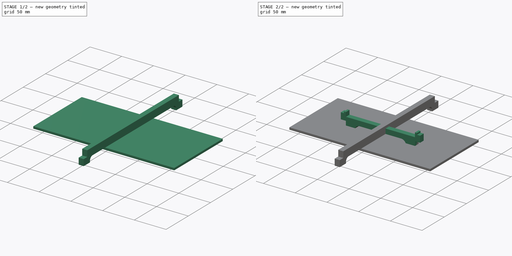
[diagram: build sequence overview — one tinted view per stage of 2, left to right]
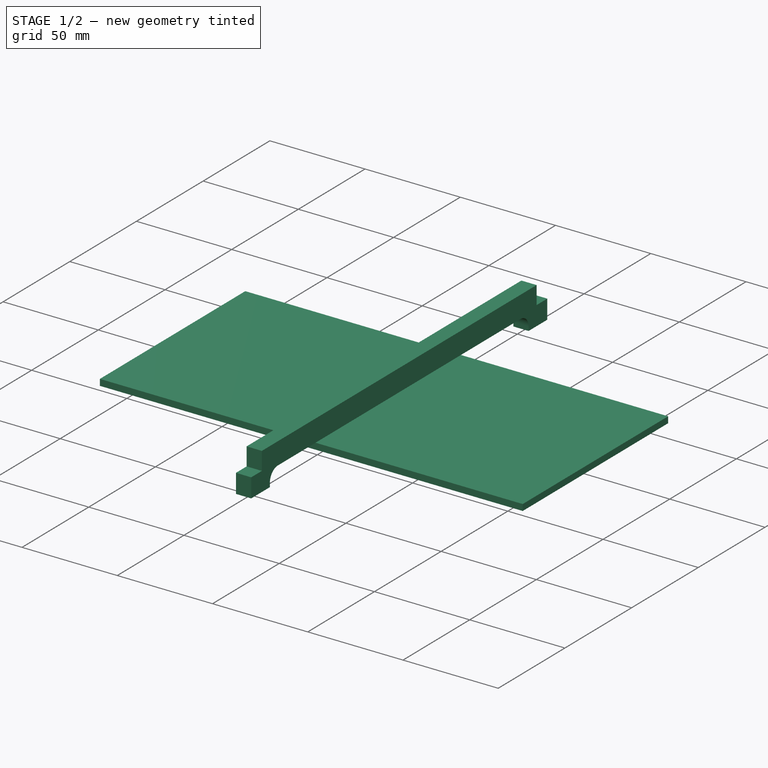
[diagram: stage 1 of 2 — iso view after this stage's code; geometry added in this stage tinted green]
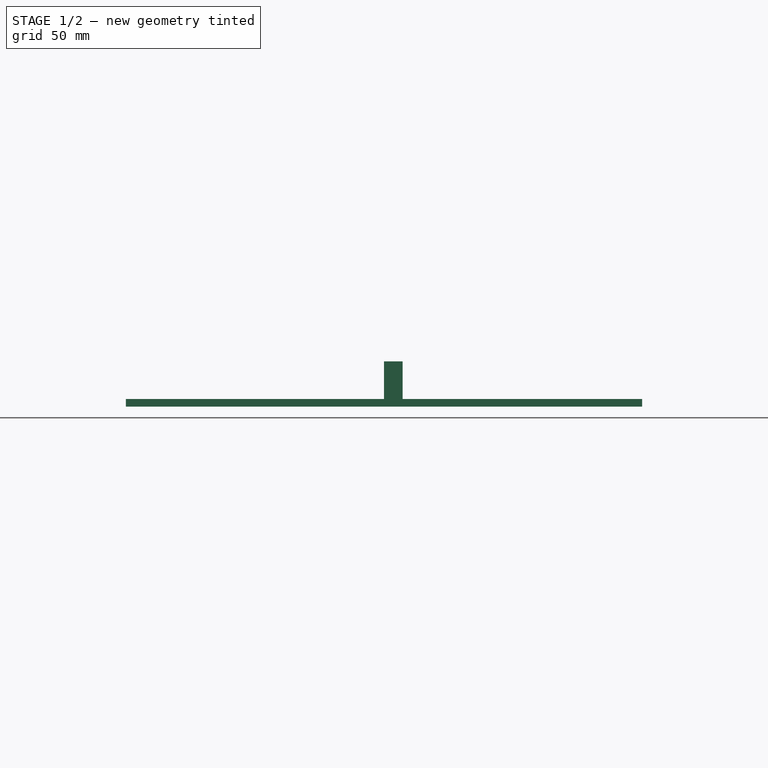
[diagram: stage 1 of 2 — front view after this stage's code; geometry added in this stage tinted green]
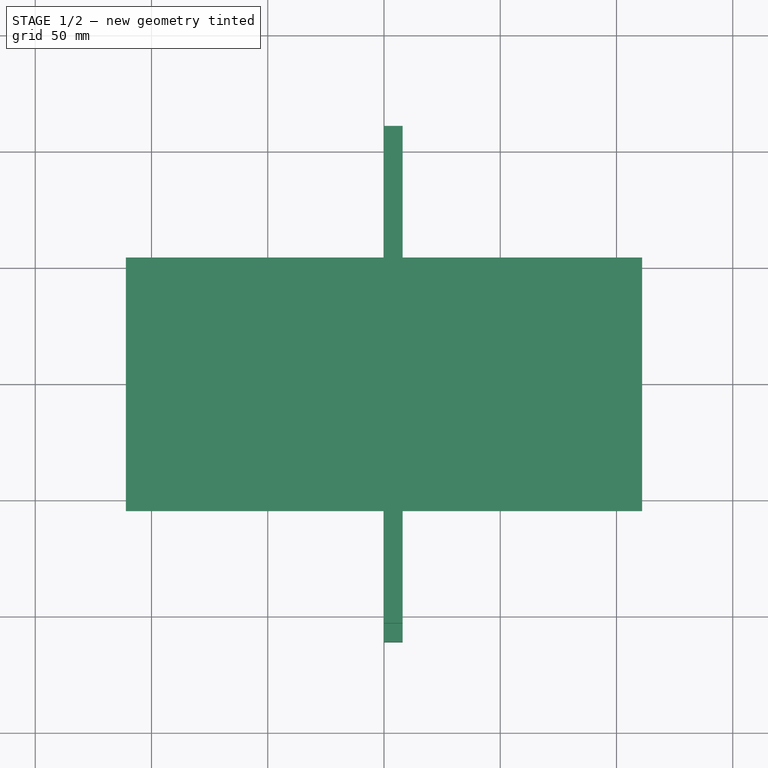
[diagram: stage 1 of 2 — top view after this stage's code; geometry added in this stage tinted green]
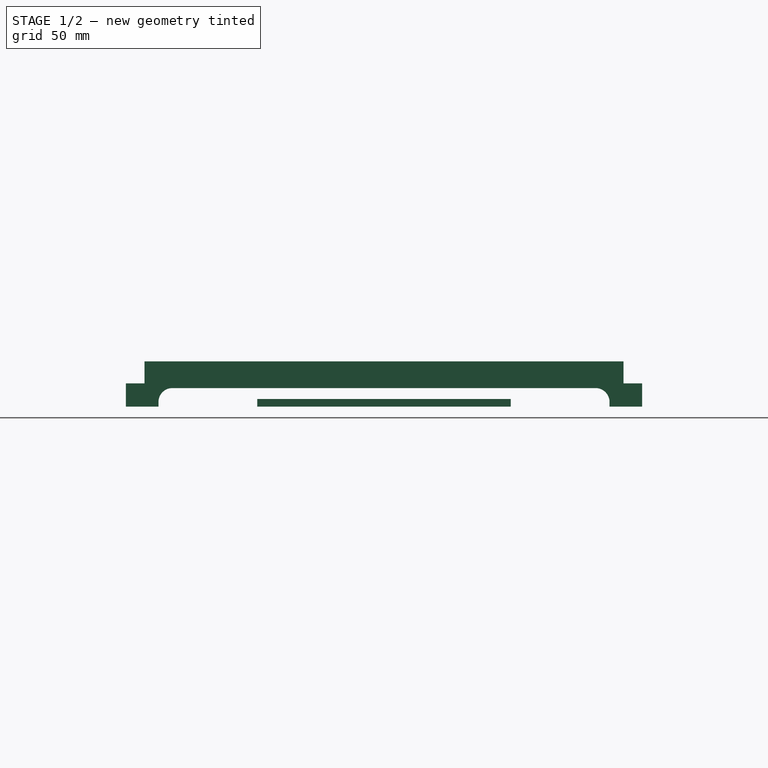
[diagram: stage 1 of 2 — right view after this stage's code; geometry added in this stage tinted green]
FCSTD DOCUMENT  (FreeCAD 0.19R24291 (Git))
Label: ri_light-supports
License: All rights reserved
LicenseURL: http://en.wikipedia.org/wiki/All_rights_reserved
objects: Sketcher::SketchObject×7, App::Part×5, TechDraw::DrawViewPart×4, PartDesign::Body×4, PartDesign::Pad×3, TechDraw::DrawSVGTemplate×2, TechDraw::DrawPage×2, Part::Part2DObjectPython×2
note: 19 computed .brp shape members not serialized (recipe doc carries the construction recipe); baked Part::Feature solids carry a one-line shape summary decoded from their .brp

FEATURE [Sketcher::SketchObject] Sketch
  FullyConstrained = true
  MapMode = 5
  Placement = pos=(0,0,0) rot=(0.57735,0.57735,0.57735;2.0944rad)
  Support = -> [YZ_Plane015]
  sketch-geometry (14):
    g0: LineSegment StartX=-111 StartY=0 StartZ=0 EndX=-111 EndY=10 EndZ=0
    g1: LineSegment StartX=-111 StartY=10 StartZ=0 EndX=-103 EndY=10 EndZ=0
    g2: LineSegment StartX=-103 StartY=10 StartZ=0 EndX=-103 EndY=19.5 EndZ=0
    g3: LineSegment StartX=-103 StartY=19.5 StartZ=0 EndX=103 EndY=19.5 EndZ=0
    g4: LineSegment StartX=103 StartY=19.5 StartZ=0 EndX=103 EndY=10 EndZ=0
    g5: LineSegment StartX=103 StartY=10 StartZ=0 EndX=111 EndY=10 EndZ=0
    g6: LineSegment StartX=111 StartY=10 StartZ=0 EndX=111 EndY=0 EndZ=0
    g7: LineSegment StartX=111 StartY=0 StartZ=0 EndX=97 EndY=0 EndZ=0
    g8: LineSegment StartX=97 StartY=0 StartZ=0 EndX=97 EndY=2 EndZ=0
    g9: LineSegment StartX=91 StartY=8 StartZ=0 EndX=-91 EndY=8 EndZ=0
    g10: LineSegment StartX=-97 StartY=2 StartZ=0 EndX=-97 EndY=0 EndZ=0
    g11: LineSegment StartX=-97 StartY=0 StartZ=0 EndX=-111 EndY=0 EndZ=0
    g12: ArcOfCircle CenterX=-91 CenterY=2 CenterZ=0 NormalX=0 NormalY=0 NormalZ=1 AngleXU=0 Radius=6 StartAngle=1.57079 EndAngle=3.14159
    g13: ArcOfCircle CenterX=91 CenterY=2 CenterZ=0 NormalX=0 NormalY=0 NormalZ=1 AngleXU=0 Radius=6 StartAngle=5.87662e-08 EndAngle=1.5708
  constraints (43):
    c: PointOnObject(g0,g-1)
    c: Vertical(g0)
    c: Coincident(g0,g1)
    c: Horizontal(g1)
    c: Coincident(g1,g2)
    c: Vertical(g2)
    c: Coincident(g2,g3)
    c: Horizontal(g3)
    c: Coincident(g3,g4)
    c: Vertical(g4)
    c: Coincident(g4,g5)
    c: Horizontal(g5)
    c: Coincident(g5,g6)
    c: Vertical(g6)
    c: Coincident(g6,g7)
    c: PointOnObject(g7,g-1)
    c: Coincident(g7,g8)
    c: Vertical(g8)
    c: Horizontal(g9)
    c: PointOnObject(g10,g-1)
    c: Vertical(g10)
    c: Coincident(g10,g11)
    c: Coincident(g11,g0)
    c: Coincident(g9,g13)
    c: Coincident(g8,g13)
    c: Coincident(g12,g9)
    c: Tangent(g12,g9)
    c: Coincident(g10,g12)
    c: Tangent(g12,g10)
    c: Tangent(g13,g9)
    c: Tangent(g13,g8)
    c: Equal(g1,g5)
    c: Equal(g11,g7)
    c: Equal(g0,g6)
    c: Symmetric(g0,g6,g-1)
    c: DistanceY(g0,g2) = 19.5
    c: DistanceY(g0,g0) = 10
    c: DistanceX(g1,g1) = 8
    c: DistanceX(g11,g11) = 14
    c: DistanceY(g10,g9) = 8
    c: Equal(g12,g13)
    c: DistanceX(g0,g6) = 222
    c: Radius(g12) = 6
FEATURE [Sketcher::SketchObject] Sketch001
  FullyConstrained = true
  MapMode = 5
  Placement = pos=(0,0,0) rot=(1,0,0;1.5708rad)
  Support = -> [XZ_Plane016]
  sketch-geometry (20):
    g0: LineSegment StartX=-54.5 StartY=0 StartZ=0 EndX=-54.5 EndY=10 EndZ=0
    g1: LineSegment StartX=-54.5 StartY=10 StartZ=0 EndX=-62.5 EndY=10 EndZ=0
    g2: LineSegment StartX=-62.5 StartY=10 StartZ=0 EndX=-62.5 EndY=20 EndZ=0
    g3: LineSegment StartX=62.5 StartY=20 StartZ=0 EndX=62.5 EndY=10 EndZ=0
    g4: LineSegment StartX=62.5 StartY=10 StartZ=0 EndX=54.5 EndY=10 EndZ=0
    g5: LineSegment StartX=54.5 StartY=10 StartZ=0 EndX=54.5 EndY=0 EndZ=0
    g6: LineSegment StartX=54.5 StartY=0 StartZ=0 EndX=40.5 EndY=0 EndZ=0
    g7: LineSegment StartX=-54.5 StartY=0 StartZ=0 EndX=-40.5 EndY=1e-15 EndZ=0
    g8: ArcOfCircle CenterX=-32.5 CenterY=0 CenterZ=0 NormalX=0 NormalY=0 NormalZ=1 AngleXU=0 Radius=8 StartAngle=1.5708 EndAngle=3.14159
    g9: ArcOfCircle CenterX=32.5 CenterY=0 CenterZ=0 NormalX=0 NormalY=0 NormalZ=1 AngleXU=0 Radius=8 StartAngle=0 EndAngle=1.5708
    g10: LineSegment StartX=-32.5 StartY=8 StartZ=0 EndX=32.5 EndY=8 EndZ=0
    g11: LineSegment StartX=-54.35 StartY=15.7 StartZ=0 EndX=54.35 EndY=15.7 EndZ=0
    g12: LineSegment StartX=-62.5 StartY=20 StartZ=0 EndX=-57.5 EndY=20 EndZ=0
    g13: LineSegment StartX=-57.5 StartY=20 StartZ=0 EndX=-57.5 EndY=22.5 EndZ=0
    g14: LineSegment StartX=-57.5 StartY=22.5 StartZ=0 EndX=-54.35 EndY=22.5 EndZ=0
    g15: LineSegment StartX=-54.35 StartY=22.5 StartZ=0 EndX=-54.35 EndY=15.7 EndZ=0
    g16: LineSegment StartX=54.35 StartY=15.7 StartZ=0 EndX=54.35 EndY=22.5 EndZ=0
    g17: LineSegment StartX=54.35 StartY=22.5 StartZ=0 EndX=57.5 EndY=22.5 EndZ=0
    g18: LineSegment StartX=57.5 StartY=22.5 StartZ=0 EndX=57.5 EndY=20 EndZ=0
    g19: LineSegment StartX=57.5 StartY=20 StartZ=0 EndX=62.5 EndY=20 EndZ=0
  constraints (60):
    c: Vertical(g0)
    c: Coincident(g0,g1)
    c: Coincident(g1,g2)
    c: Vertical(g2)
    c: Vertical(g3)
    c: Coincident(g3,g4)
    c: Horizontal(g4)
    c: Coincident(g4,g5)
    c: Vertical(g5)
    c: Coincident(g5,g6)
    c: Coincident(g7,g0)
    c: Equal(g1,g4)
    c: Equal(g7,g6)
    c: DistanceY(g0,g2) = 20
    c: DistanceX(g1,g1) = 8
    c: DistanceX(g2,g3) = 125
    c: DistanceX(g7,g7) = 14
    c: Tangent(g6,g7)
    c: Tangent(g1,g4)
    c: DistanceY(g0,g1) = 10
    c: Tangent(g-1,g7)
    c: Tangent(g6,g-1)
    c: PointOnObject(g8,g-1)
    c: Coincident(g8,g7)
    c: PointOnObject(g9,g-1)
    c: Coincident(g9,g6)
    c: Equal(g8,g9)
    c: Coincident(g10,g8)
    c: Coincident(g10,g9)
    c: Angle(g9) = 1.5708
    c: Angle(g8) = 1.5708
    c: Radius(g8) = 8
    c: Horizontal(g11)
    c: Coincident(g2,g12)
    c: Horizontal(g12)
    c: Coincident(g12,g13)
    c: Vertical(g13)
    c: Coincident(g13,g14)
    c: Horizontal(g14)
    c: Coincident(g15,g14)
    c: Coincident(g15,g11)
    c: Vertical(g15)
    c: Coincident(g11,g16)
    c: Vertical(g16)
    c: Coincident(g16,g17)
    c: Horizontal(g17)
    c: Coincident(g17,g18)
    c: Vertical(g18)
    c: Coincident(g18,g19)
    c: Coincident(g19,g3)
    c: Horizontal(g19)
    c: DistanceX(g12,g12) = 5
    c: DistanceY(g13,g13) = 2.5
    c: DistanceX(g11,g11) = 108.7
    c: Equal(g19,g12)
    c: DistanceY(g15,g15) = 6.8
    c: Symmetric(g0,g5,g-1)
    c: Equal(g17,g14)
    c: Equal(g13,g18)
    c: Equal(g15,g16)
FEATURE [TechDraw::DrawSVGTemplate] Template
  Height = 297
  Orientation = 1
  Width = 420
FEATURE [TechDraw::DrawViewPart] View
  CoarseView = false
  Direction = (1,0,0)
  Focus = 100
  HardHidden = false
  IsoCount = 0
  IsoHidden = false
  IsoVisible = false
  LockPosition = false
  Perspective = false
  Rotation = 0
  ScaleType = 0
  SeamHidden = false
  SeamVisible = true
  SmoothHidden = false
  SmoothVisible = true
  X = 91.6528
  XDirection = (0.866,0.5,0)
  Y = 262.974
FEATURE [TechDraw::DrawViewPart] View001
  CoarseView = false
  Direction = (0,-1,0)
  Focus = 100
  HardHidden = false
  IsoCount = 0
  IsoHidden = false
  IsoVisible = false
  LockPosition = false
  Perspective = false
  Rotation = 0
  ScaleType = 0
  SeamHidden = false
  SeamVisible = true
  SmoothHidden = false
  SmoothVisible = true
  X = 139.852
  XDirection = (0.866,0.5,0)
  Y = 222.521
FEATURE [TechDraw::DrawPage] Page  label="Supports"
  KeepUpdated = true
  NextBalloonIndex = 1
  ProjectionType = 0
  Template = -> Template
  Views = -> [View,View001]
FEATURE [Sketcher::SketchObject] Sketch003
  FullyConstrained = true
  MapMode = 5
  Support = -> [XY_Plane017]
  sketch-geometry (4):
    g0: LineSegment StartX=-110.5 StartY=57 StartZ=0 EndX=110.5 EndY=57 EndZ=0
    g1: LineSegment StartX=110.5 StartY=57 StartZ=0 EndX=110.5 EndY=-57 EndZ=0
    g2: LineSegment StartX=110.5 StartY=-57 StartZ=0 EndX=-110.5 EndY=-57 EndZ=0
    g3: LineSegment StartX=-110.5 StartY=-57 StartZ=0 EndX=-110.5 EndY=57 EndZ=0
  constraints (11):
    c: Coincident(g0,g1)
    c: Coincident(g1,g2)
    c: Coincident(g2,g3)
    c: Coincident(g3,g0)
    c: Horizontal(g0)
    c: Horizontal(g2)
    c: Vertical(g1)
    c: Vertical(g3)
    c: DistanceX(g0,g0) = 221
    c: Symmetric(g0,g1,g-1)
    c: DistanceY(g1,g1) = 114
FEATURE [Sketcher::SketchObject] Sketch004
  FullyConstrained = true
  MapMode = 5
  Support = -> [XY_Plane018]
  sketch-geometry (4):
    g0: LineSegment StartX=-111 StartY=54.5 StartZ=0 EndX=111 EndY=54.5 EndZ=0
    g1: LineSegment StartX=111 StartY=54.5 StartZ=0 EndX=111 EndY=-54.5 EndZ=0
    g2: LineSegment StartX=111 StartY=-54.5 StartZ=0 EndX=-111 EndY=-54.5 EndZ=0
    g3: LineSegment StartX=-111 StartY=-54.5 StartZ=0 EndX=-111 EndY=54.5 EndZ=0
  constraints (11):
    c: Coincident(g0,g1)
    c: Coincident(g1,g2)
    c: Coincident(g2,g3)
    c: Coincident(g3,g0)
    c: Horizontal(g0)
    c: Horizontal(g2)
    c: Vertical(g1)
    c: Vertical(g3)
    c: DistanceX(g0,g0) = 222
    c: DistanceY(g1,g1) = 109
    c: Symmetric(g0,g2,g-1)
FEATURE [Sketcher::SketchObject] Sketch005
  FullyConstrained = true
  MapMode = 5
  Support = -> [XY_Plane010]
  sketch-geometry (4):
    g0: LineSegment StartX=-240 StartY=195 StartZ=0 EndX=-200 EndY=195 EndZ=0
    g1: LineSegment StartX=-200 StartY=195 StartZ=0 EndX=-200 EndY=-200 EndZ=0
    g2: LineSegment StartX=-200 StartY=-200 StartZ=0 EndX=-240 EndY=-200 EndZ=0
    g3: LineSegment StartX=-240 StartY=-200 StartZ=0 EndX=-240 EndY=195 EndZ=0
  constraints (12):
    c: Coincident(g0,g1)
    c: Coincident(g1,g2)
    c: Coincident(g2,g3)
    c: Coincident(g3,g0)
    c: Horizontal(g0)
    c: Horizontal(g2)
    c: Vertical(g1)
    c: Vertical(g3)
    c: DistanceY(g3,g3) = 395
    c: DistanceX(g0,g0) = 40
    c: DistanceX(g1,g-1) = 200
    c: DistanceY(g1,g-1) = 200
FEATURE [App::Part] Part005  label="Camera Arm"
  Group = -> [Sketch005]
  Origin = -> Origin010
FEATURE [TechDraw::DrawSVGTemplate] Template003
  Height = 420
  Orientation = 1
  Width = 594
FEATURE [TechDraw::DrawViewPart] View005
  CoarseView = false
  Direction = (0,0,1)
  Focus = 100
  HardHidden = false
  IsoCount = 0
  IsoHidden = false
  IsoVisible = false
  LockPosition = false
  Perspective = false
  Rotation = 0
  ScaleType = 0
  SeamHidden = false
  SeamVisible = true
  SmoothHidden = false
  SmoothVisible = true
  X = 297
  XDirection = (1,0,0)
  Y = 210
FEATURE [TechDraw::DrawViewPart] View006
  CoarseView = false
  Direction = (0,0,1)
  Focus = 100
  HardHidden = false
  IsoCount = 0
  IsoHidden = false
  IsoVisible = false
  LockPosition = false
  Perspective = false
  Rotation = 0
  ScaleType = 0
  SeamHidden = false
  SeamVisible = true
  SmoothHidden = false
  SmoothVisible = true
  X = 139.417
  XDirection = (1,0,0)
  Y = 208.618
FEATURE [TechDraw::DrawPage] Page003
  KeepUpdated = true
  NextBalloonIndex = 1
  ProjectionType = 0
  Template = -> Template003
  Views = -> [View005,View006]
FEATURE [PartDesign::Pad] Pad
  Direction = (1,1,1)
  Length = 8
  Length2 = 100
  Placement = pos=(0,0,0) rot=(0.57735,0.57735,0.57735;2.0944rad)
  Profile = -> Sketch
  Refine = true
  Type = 0
FEATURE [PartDesign::Body] Body004
  Group = -> [Sketch001,Pad001]
  Origin = -> Origin016
  Tip = -> Pad001
FEATURE [App::Part] Part001  label="horizontal"
  Group = -> [Body004]
  Origin = -> Origin002
FEATURE [PartDesign::Body] Body005  label="sidelight"
  Group = -> [Sketch003]
  Origin = -> Origin017
FEATURE [App::Part] Part003  label="sidelight new"
  Group = -> [Body005]
  Origin = -> Origin006
FEATURE [PartDesign::Pad] Pad002
  Direction = (1,1,1)
  Length = 3.3
  Length2 = 100
  Profile = -> Sketch004
  Refine = true
  Type = 0
FEATURE [PartDesign::Body] Body
  Group = -> [Sketch004,Pad002]
  Origin = -> Origin018
  Tip = -> Pad002
FEATURE [App::Part] Part004  label="backlight"
  Group = -> [Body]
  Origin = -> Origin008
FEATURE [Part::Part2DObjectPython] Shape2DView  label="Shape2DViewVERT"  # Draft 2D object (typed FeaturePython)
  Base = -> Body003
  FuseArch = false
  HiddenLines = false
  InPlace = true
  Projection = (1,0,0)
  ProjectionMode = 0
  SegmentLength = 0.05
  Tessellation = false
  VisibleOnly = false
FEATURE [Sketcher::SketchObject] Sketch006  label="SketchVERT"
  FullyConstrained = false
  sketch-geometry (14):
    g0: LineSegment StartX=8.53e-14 StartY=111 StartZ=0 EndX=10 EndY=111 EndZ=0
    g1: LineSegment StartX=10 StartY=111 StartZ=0 EndX=10 EndY=103 EndZ=0
    g2: LineSegment StartX=10 StartY=103 StartZ=0 EndX=19.5 EndY=103 EndZ=0
    g3: LineSegment StartX=19.5 StartY=103 StartZ=0 EndX=19.5 EndY=-103 EndZ=0
    g4: LineSegment StartX=19.5 StartY=-103 StartZ=0 EndX=10 EndY=-103 EndZ=0
    g5: LineSegment StartX=10 StartY=-103 StartZ=0 EndX=10 EndY=-111 EndZ=0
    g6: LineSegment StartX=10 StartY=-111 StartZ=0 EndX=-8.17e-14 EndY=-111 EndZ=0
    g7: LineSegment StartX=-8.88e-14 StartY=-111 StartZ=0 EndX=-7.79e-14 EndY=-97 EndZ=0
    g8: LineSegment StartX=-7.64e-14 StartY=-97 StartZ=0 EndX=2 EndY=-97 EndZ=0
    g9: ArcOfCircle CenterX=2 CenterY=-91 CenterZ=0 NormalX=0 NormalY=0 NormalZ=1 AngleXU=-1.5708 Radius=6 StartAngle=5.87662e-08 EndAngle=1.5708
    g10: LineSegment StartX=8 StartY=-91 StartZ=0 EndX=8 EndY=91 EndZ=0
    g11: ArcOfCircle CenterX=2 CenterY=91 CenterZ=0 NormalX=0 NormalY=0 NormalZ=1 AngleXU=-1.5708 Radius=6 StartAngle=1.57079 EndAngle=3.14159
    g12: LineSegment StartX=2 StartY=97 StartZ=0 EndX=7.59e-14 EndY=97 EndZ=0
    g13: LineSegment StartX=7.37e-14 StartY=97 StartZ=0 EndX=8.46e-14 EndY=111 EndZ=0
FEATURE [Part::Part2DObjectPython] Shape2DView001  label="Shape2DHORZ"  # Draft 2D object (typed FeaturePython)
  Base = -> Sketch001
  FuseArch = false
  HiddenLines = false
  InPlace = true
  Projection = (0,-1,0)
  ProjectionMode = 0
  SegmentLength = 0.05
  Tessellation = false
  VisibleOnly = false
FEATURE [Sketcher::SketchObject] Sketch007  label="SketchHORZ"
  FullyConstrained = false
  sketch-geometry (20):
    g0: ArcOfCircle CenterX=0 CenterY=-32.5 CenterZ=0 NormalX=0 NormalY=0 NormalZ=1 AngleXU=1.5708 Radius=8 StartAngle=1.5708 EndAngle=3.14159
    g1: LineSegment StartX=0 StartY=-54.5 StartZ=0 EndX=-1e-15 EndY=-40.5 EndZ=0
    g2: LineSegment StartX=0 StartY=-54.5 StartZ=0 EndX=-10 EndY=-54.5 EndZ=0
    g3: LineSegment StartX=-10 StartY=-54.5 StartZ=0 EndX=-10 EndY=-62.5 EndZ=0
    g4: LineSegment StartX=-10 StartY=-62.5 StartZ=0 EndX=-20 EndY=-62.5 EndZ=0
    g5: LineSegment StartX=-20 StartY=-62.5 StartZ=0 EndX=-20 EndY=-57.5 EndZ=0
    g6: LineSegment StartX=-20 StartY=-57.5 StartZ=0 EndX=-22.5 EndY=-57.5 EndZ=0
    g7: LineSegment StartX=-22.5 StartY=-57.5 StartZ=0 EndX=-22.5 EndY=-54.35 EndZ=0
    g8: LineSegment StartX=-22.5 StartY=-54.35 StartZ=0 EndX=-15.7 EndY=-54.35 EndZ=0
    g9: LineSegment StartX=-15.7 StartY=-54.35 StartZ=0 EndX=-15.7 EndY=54.35 EndZ=0
    g10: LineSegment StartX=-15.7 StartY=54.35 StartZ=0 EndX=-22.5 EndY=54.35 EndZ=0
    g11: LineSegment StartX=-22.5 StartY=54.35 StartZ=0 EndX=-22.5 EndY=57.5 EndZ=0
    g12: LineSegment StartX=-22.5 StartY=57.5 StartZ=0 EndX=-20 EndY=57.5 EndZ=0
    g13: LineSegment StartX=-20 StartY=57.5 StartZ=0 EndX=-20 EndY=62.5 EndZ=0
    g14: LineSegment StartX=-20 StartY=62.5 StartZ=0 EndX=-10 EndY=62.5 EndZ=0
    g15: LineSegment StartX=-10 StartY=62.5 StartZ=0 EndX=-10 EndY=54.5 EndZ=0
    g16: LineSegment StartX=-10 StartY=54.5 StartZ=0 EndX=0 EndY=54.5 EndZ=0
    g17: LineSegment StartX=0 StartY=54.5 StartZ=0 EndX=0 EndY=40.5 EndZ=0
    g18: ArcOfCircle CenterX=0 CenterY=32.5 CenterZ=0 NormalX=0 NormalY=0 NormalZ=1 AngleXU=1.5708 Radius=8 StartAngle=0 EndAngle=1.5708
    g19: LineSegment StartX=-8 StartY=-32.5 StartZ=0 EndX=-8 EndY=32.5 EndZ=0
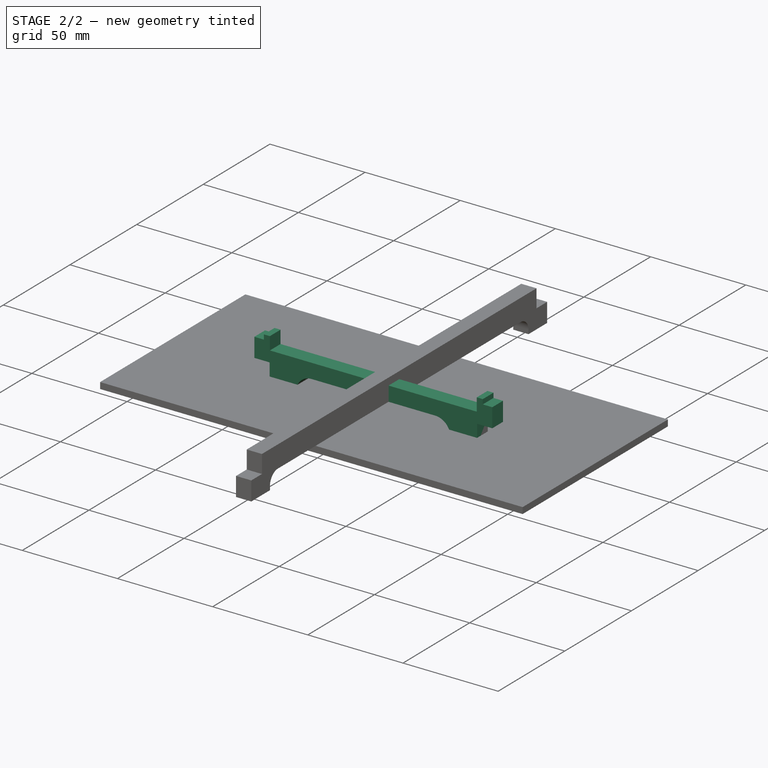
[diagram: stage 2 of 2 — iso view after this stage's code; geometry added in this stage tinted green]
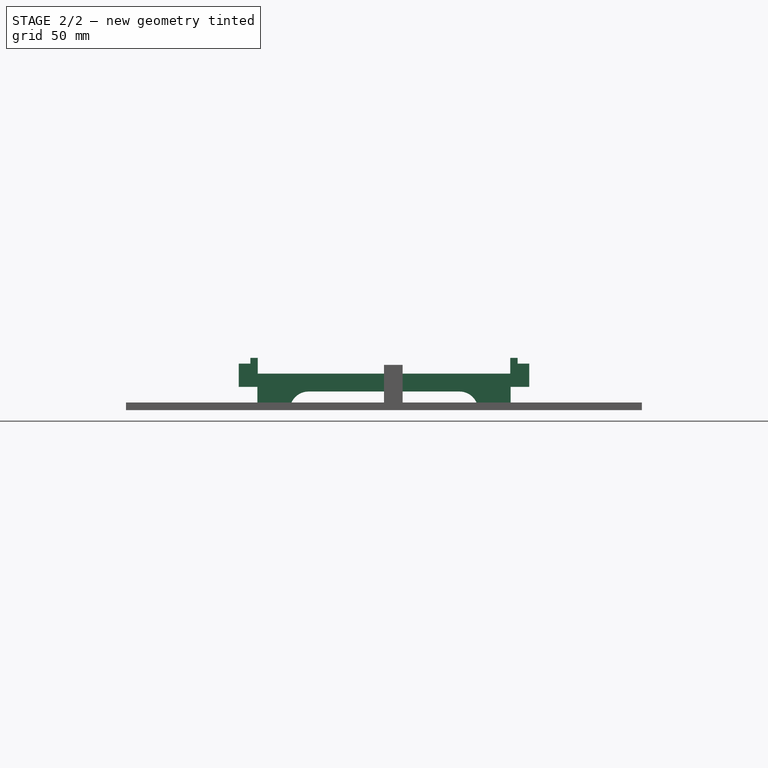
[diagram: stage 2 of 2 — front view after this stage's code; geometry added in this stage tinted green]
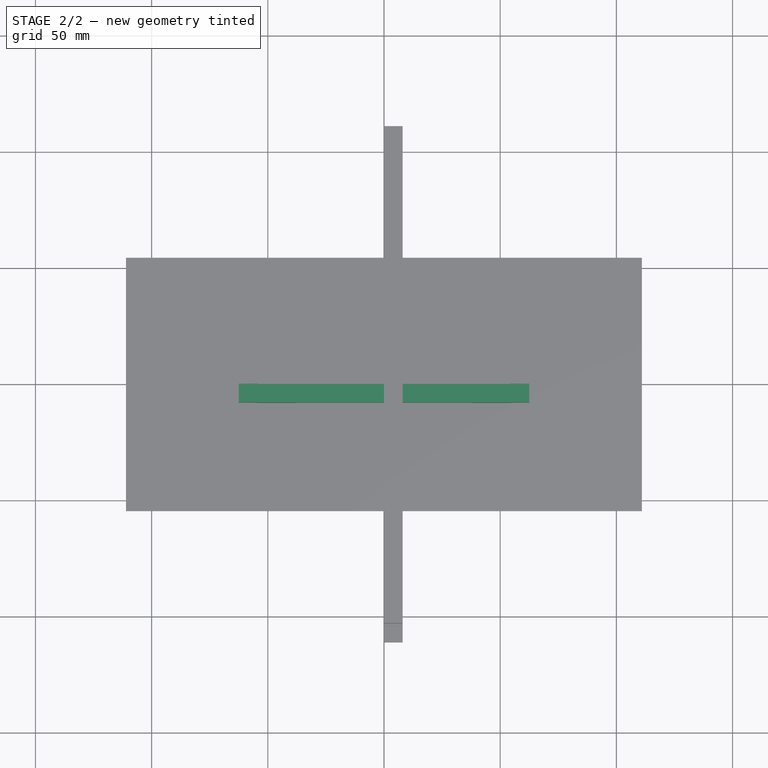
[diagram: stage 2 of 2 — top view after this stage's code; geometry added in this stage tinted green]
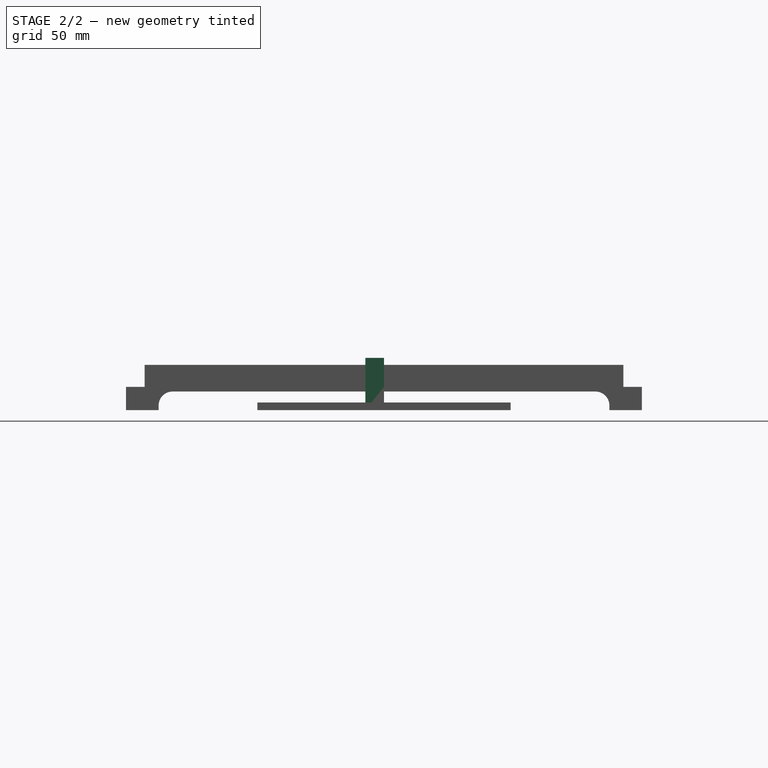
[diagram: stage 2 of 2 — right view after this stage's code; geometry added in this stage tinted green]
FEATURE [PartDesign::Body] Body003
  Group = -> [Sketch,Pad]
  Origin = -> Origin015
  Tip = -> Pad
FEATURE [App::Part] Part  label="vertical"
  Group = -> [Body003]
  Origin = -> Origin
FEATURE [PartDesign::Pad] Pad001
  Direction = (1,1,1)
  Length = 8
  Length2 = 100
  Placement = pos=(0,0,0) rot=(1,0,0;1.5708rad)
  Profile = -> Sketch001
  Refine = true
  Type = 0
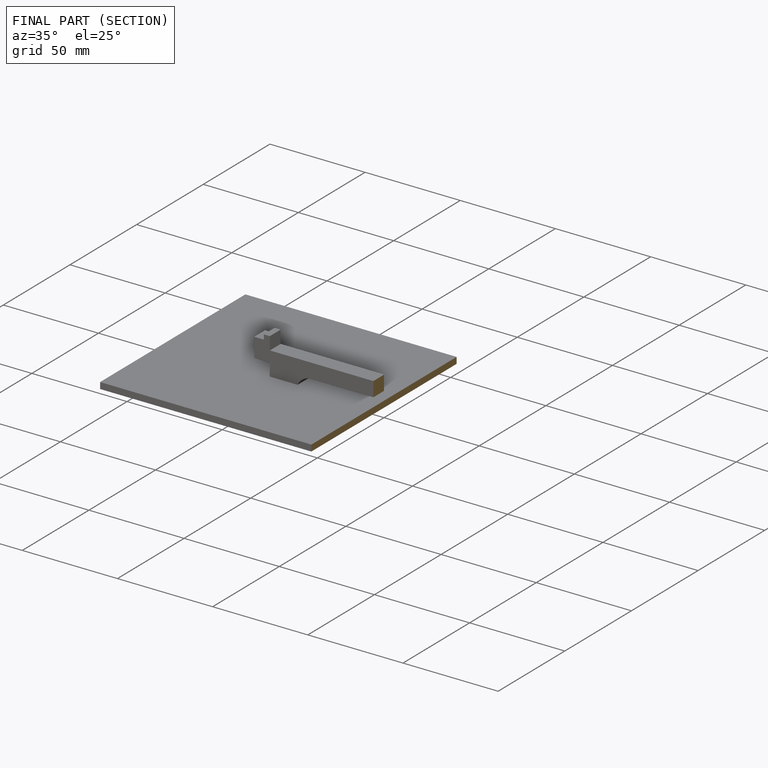
[diagram: finished part — half-section view (interior)]
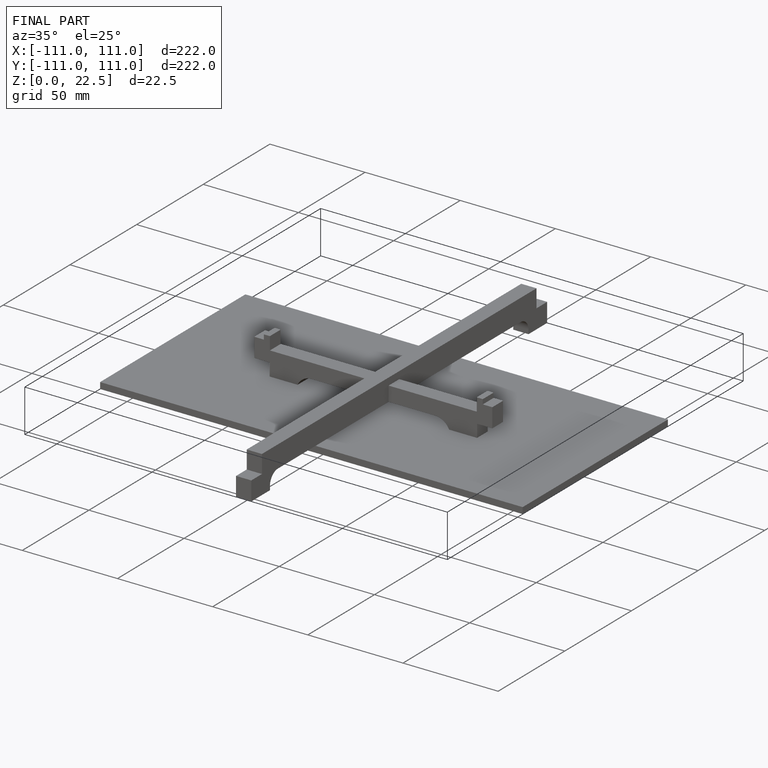
[diagram: finished part — iso view with bounding-box wireframe]
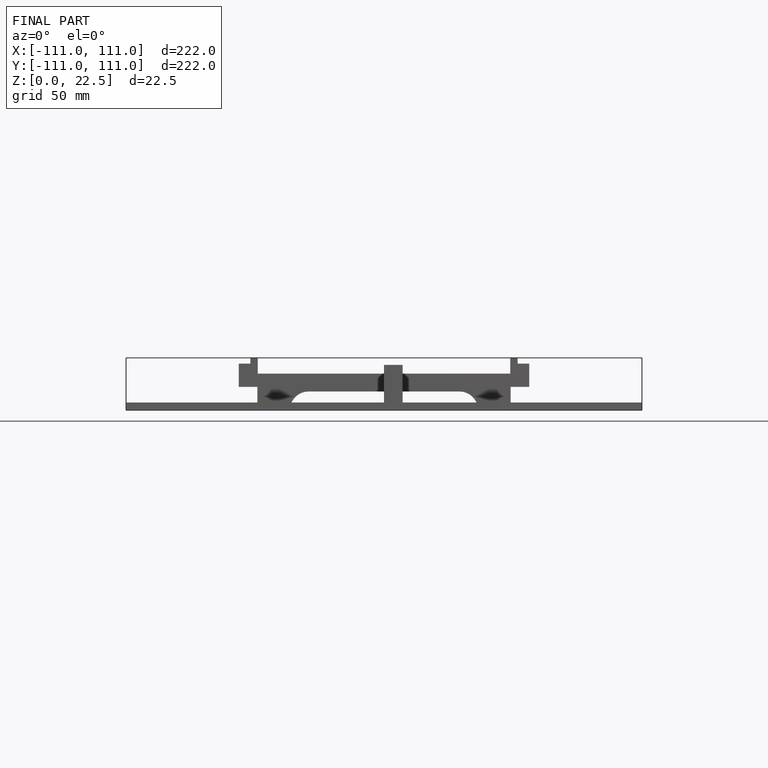
[diagram: finished part — front view with bounding-box wireframe]
